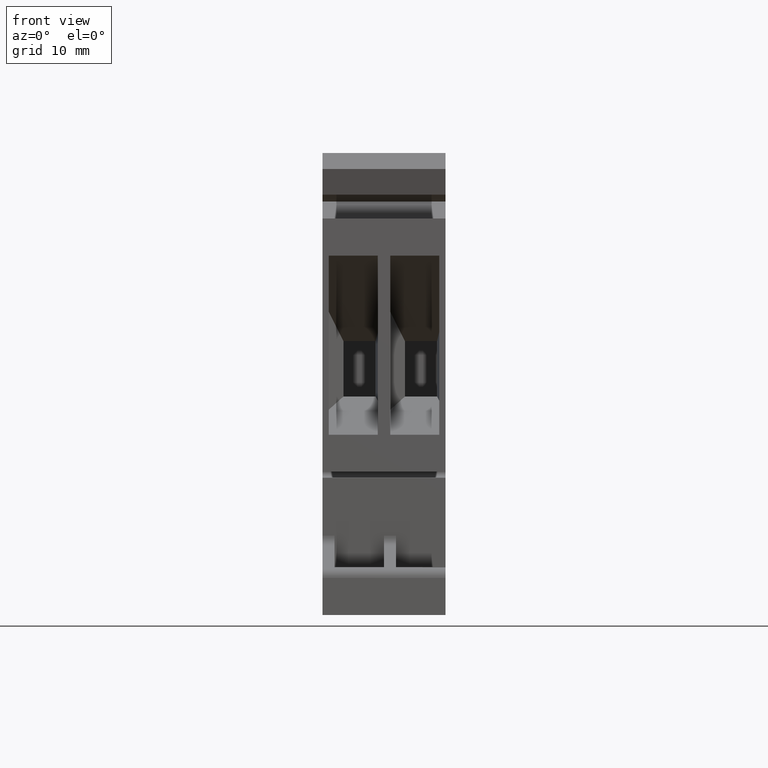
[diagram: clean part render]
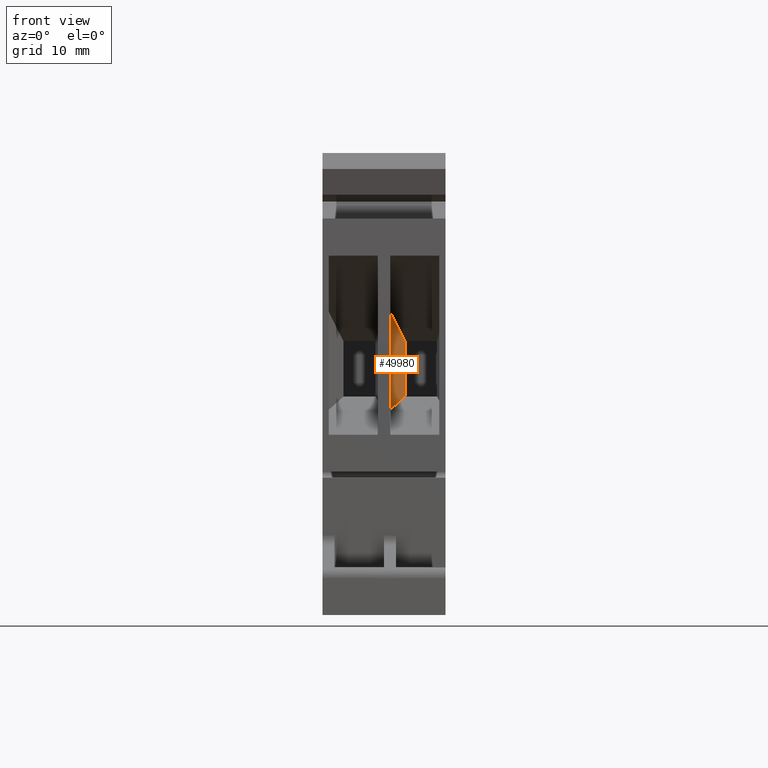
[diagram: same view with one face highlighted and labeled with its STEP entity id]
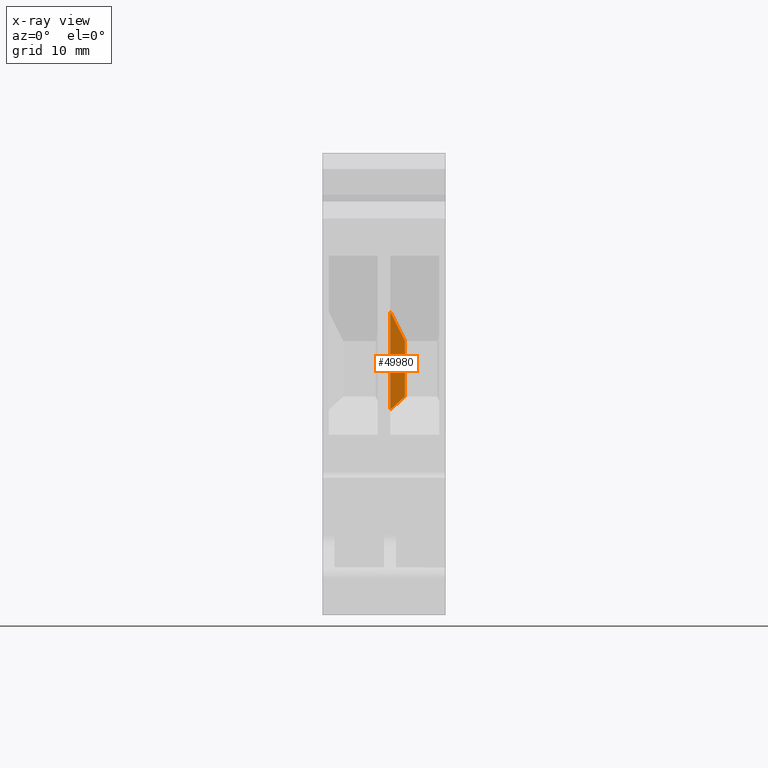
[diagram: x-ray of the same camera — body ghosted, the highlighted face saturated]
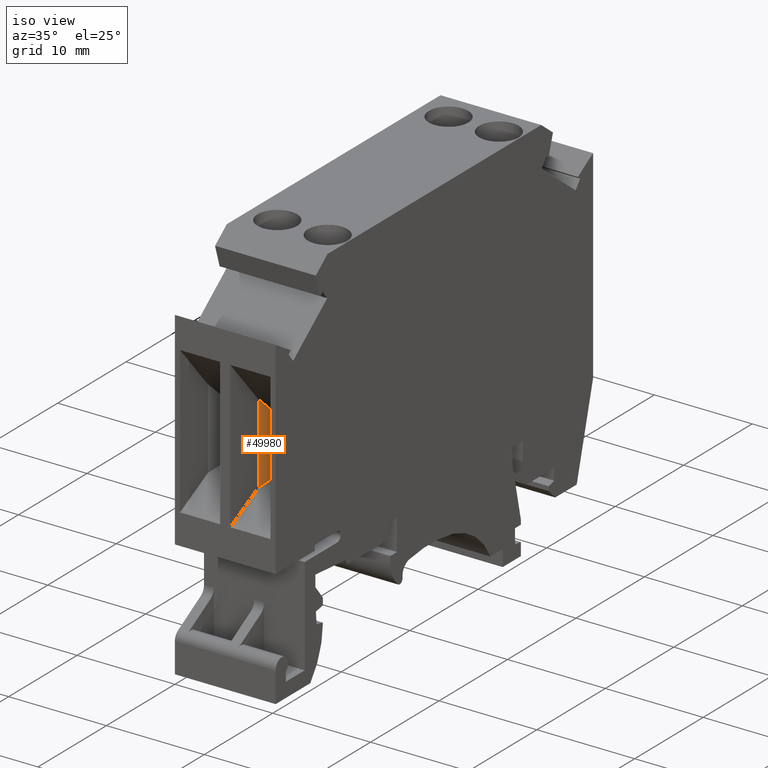
[diagram: same view with one face highlighted and labeled with its STEP entity id]
A machine part, front view. The second image highlights one B-rep face of the part: STEP entity #49980.
The next image is the same camera in x-ray: the body ghosted, the highlighted face saturated — about 0% of this face is hidden behind the body in this view.
A second angle (iso view) of the same face is appended — the face is thin or edge-on in the first view.
In plain terms, the highlighted planar face has unit normal (-0.866, 0.5, -0).
Its self-contained STEP definition (entity closure, byte-faithful):
#47510=CARTESIAN_POINT('',(-38.6770985338076,27.1795237515583,6.9));
#47520=VERTEX_POINT('',#47510);
#47550=CARTESIAN_POINT('',(-23.4376536701711,9.53385075155829,
15.698497594321));
#47560=DIRECTION('',(0.611526032477599,-0.70808277444774,
0.353064719467406));
#47570=VECTOR('',#47560,1.);
#47580=LINE('',#47550,#47570);
#47590=CARTESIAN_POINT('',(-40.7988607730795,29.6363010812415,5.675));
#47600=VERTEX_POINT('',#47590);
#47610=EDGE_CURVE('',#47600,#47520,#47580,.T.);
#48360=CARTESIAN_POINT('',(-40.7988607730795,21.4299870445672,5.675));
#48370=VERTEX_POINT('',#48360);
#48400=CARTESIAN_POINT('',(-56.8069065338077,13.1343196058094,
-3.56724952915626));
#48410=DIRECTION('',(-0.790104408757777,-0.409446819113338,
-0.456166993084213));
#48420=VECTOR('',#48410,1.);
#48430=LINE('',#48400,#48420);
#48440=CARTESIAN_POINT('',(-38.6770985338076,22.5295237515583,6.9));
#48450=VERTEX_POINT('',#48440);
#48460=EDGE_CURVE('',#48450,#48370,#48430,.T.);
#49770=CARTESIAN_POINT('',(-38.6770985338076,22.5295237515583,6.9));
#49780=DIRECTION('',(0.5,0.,-0.866025403784439));
#49790=DIRECTION('',(0.866025403784439,0.,0.5));
#49800=AXIS2_PLACEMENT_3D('',#49770,#49780,#49790);
#49810=PLANE('',#49800);
#49820=ORIENTED_EDGE('',*,*,#47610,.F.);
#49830=CARTESIAN_POINT('',(-38.6770985338076,9.53385075155829,6.9));
#49840=DIRECTION('',(0.,-1.,0.));
#49850=VECTOR('',#49840,1.);
#49860=LINE('',#49830,#49850);
#49870=EDGE_CURVE('',#47520,#48450,#49860,.T.);
#49880=ORIENTED_EDGE('',*,*,#49870,.F.);
#49890=ORIENTED_EDGE('',*,*,#48460,.F.);
#49900=CARTESIAN_POINT('',(-40.7988607730795,9.5338507515583,5.675));
#49910=DIRECTION('',(0.,1.,0.));
#49920=VECTOR('',#49910,1.);
#49930=LINE('',#49900,#49920);
#49940=EDGE_CURVE('',#48370,#47600,#49930,.T.);
#49950=ORIENTED_EDGE('',*,*,#49940,.F.);
#49960=EDGE_LOOP('',(#49950,#49890,#49880,#49820));
#49970=FACE_OUTER_BOUND('',#49960,.T.);
#49980=ADVANCED_FACE('',(#49970),#49810,.F.);